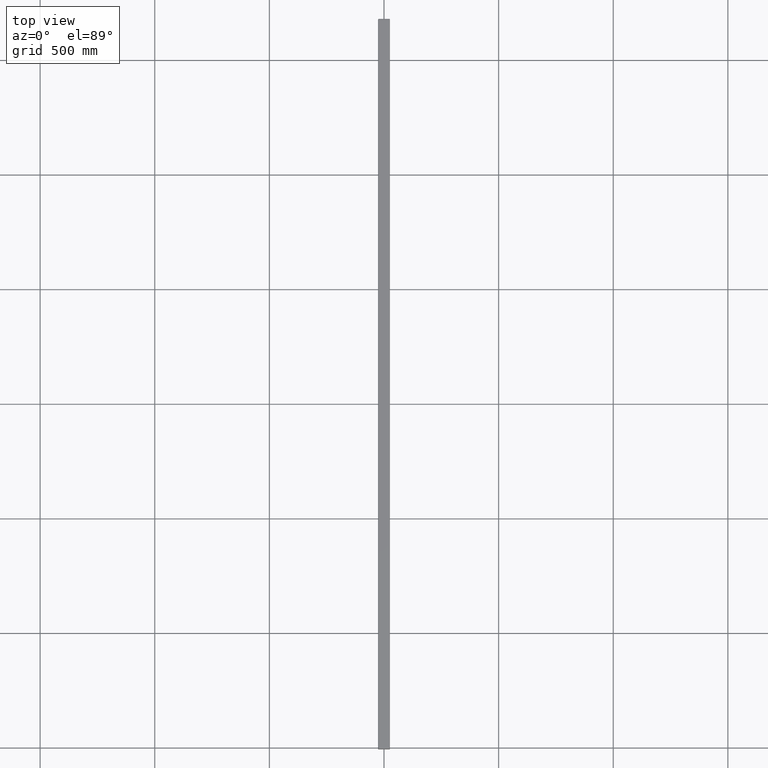
[diagram: clean part render]
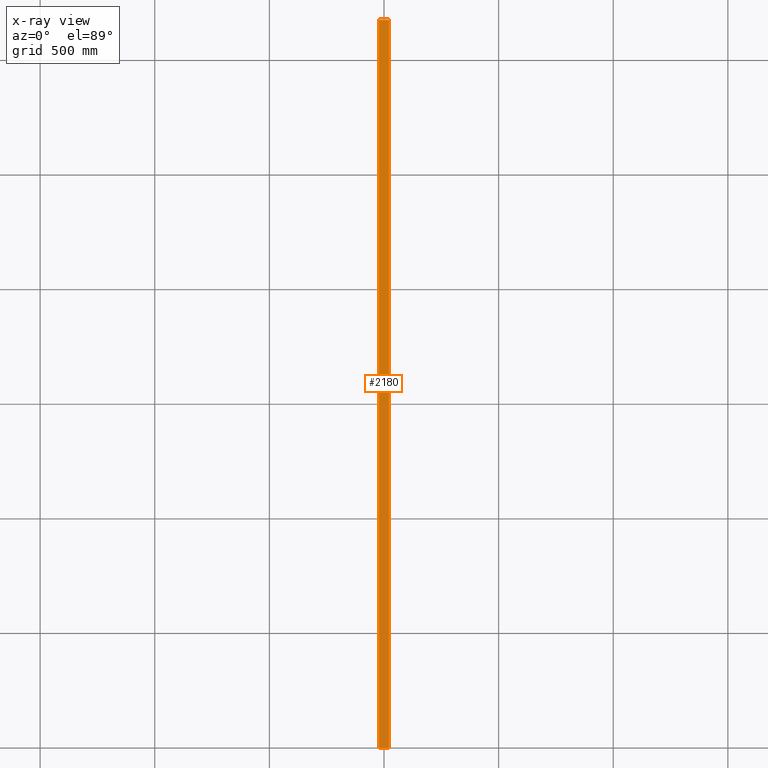
[diagram: x-ray — body ghosted, one internal face saturated and labeled with its STEP entity id]
A machine part, top view, then the same camera in x-ray: the body is ghosted and one INTERNAL B-rep face — a face not visible from any outside direction — is saturated and labeled: STEP entity #2180.
In plain terms, the highlighted planar face has unit normal (0, 0, 1).
Its self-contained STEP definition (entity closure, byte-faithful):
#112 = EDGE_LOOP ( 'NONE', ( #2264, #370, #3305, #3990 ) ) ;
#281 = EDGE_CURVE ( 'NONE', #2735, #747, #3557, .T. ) ;
#293 = DIRECTION ( 'NONE',  ( -0.000000000000000000, 1.000000000000000000, -0.000000000000000000 ) ) ;
#337 = CARTESIAN_POINT ( 'NONE',  ( 0.9253000000000001224, -0.8505999999999999117, -62.50000000000000000 ) ) ;
#370 = ORIENTED_EDGE ( 'NONE', *, *, #3981, .F. ) ;
#518 = CARTESIAN_POINT ( 'NONE',  ( 0.9253000000000001224, 0.8505999999999999117, -62.50000000000000000 ) ) ;
#573 = VERTEX_POINT ( 'NONE', #518 ) ;
#606 = VECTOR ( 'NONE', #1450, 39.37007874015748143 ) ;
#676 = CARTESIAN_POINT ( 'NONE',  ( 0.9253000000000001224, 0.8505999999999999117, 62.50000000000000000 ) ) ;
#719 = DIRECTION ( 'NONE',  ( 0.000000000000000000, 0.000000000000000000, 1.000000000000000000 ) ) ;
#747 = VERTEX_POINT ( 'NONE', #1744 ) ;
#760 = CARTESIAN_POINT ( 'NONE',  ( 0.9253000000000001224, 0.8505999999999999117, 62.50000000000000000 ) ) ;
#886 = CARTESIAN_POINT ( 'NONE',  ( 0.9253000000000001224, 0.8505999999999999117, -62.50000000000000000 ) ) ;
#925 = LINE ( 'NONE', #886, #1316 ) ;
#1316 = VECTOR ( 'NONE', #293, 39.37007874015748143 ) ;
#1450 = DIRECTION ( 'NONE',  ( -0.000000000000000000, -0.000000000000000000, -1.000000000000000000 ) ) ;
#1593 = EDGE_CURVE ( 'NONE', #2896, #573, #925, .T. ) ;
#1744 = CARTESIAN_POINT ( 'NONE',  ( 0.9253000000000001224, 0.8505999999999999117, 62.50000000000000000 ) ) ;
#1900 = DIRECTION ( 'NONE',  ( -0.000000000000000000, 1.000000000000000000, -0.000000000000000000 ) ) ;
#1955 = EDGE_CURVE ( 'NONE', #747, #573, #3760, .T. ) ;
#2082 = LINE ( 'NONE', #3338, #606 ) ;
#2106 = DIRECTION ( 'NONE',  ( -0.000000000000000000, -0.000000000000000000, -1.000000000000000000 ) ) ;
#2149 = CARTESIAN_POINT ( 'NONE',  ( 0.9253000000000001224, 0.8505999999999999117, 62.50000000000000000 ) ) ;
#2180 = ADVANCED_FACE ( 'NONE', ( #3280 ), #2632, .T. ) ;
#2264 = ORIENTED_EDGE ( 'NONE', *, *, #1593, .F. ) ;
#2632 = PLANE ( 'NONE',  #3774 ) ;
#2656 = DIRECTION ( 'NONE',  ( -1.000000000000000000, 0.000000000000000000, 0.000000000000000000 ) ) ;
#2735 = VERTEX_POINT ( 'NONE', #3294 ) ;
#2781 = VECTOR ( 'NONE', #2106, 39.37007874015748143 ) ;
#2896 = VERTEX_POINT ( 'NONE', #337 ) ;
#2912 = VECTOR ( 'NONE', #1900, 39.37007874015748143 ) ;
#3280 = FACE_OUTER_BOUND ( 'NONE', #112, .T. ) ;
#3294 = CARTESIAN_POINT ( 'NONE',  ( 0.9253000000000001224, -0.8505999999999999117, 62.50000000000000000 ) ) ;
#3305 = ORIENTED_EDGE ( 'NONE', *, *, #281, .T. ) ;
#3338 = CARTESIAN_POINT ( 'NONE',  ( 0.9253000000000001224, -0.8505999999999999117, 62.50000000000000000 ) ) ;
#3557 = LINE ( 'NONE', #676, #2912 ) ;
#3760 = LINE ( 'NONE', #2149, #2781 ) ;
#3774 = AXIS2_PLACEMENT_3D ( 'NONE', #760, #2656, #719 ) ;
#3981 = EDGE_CURVE ( 'NONE', #2735, #2896, #2082, .T. ) ;
#3990 = ORIENTED_EDGE ( 'NONE', *, *, #1955, .T. ) ;